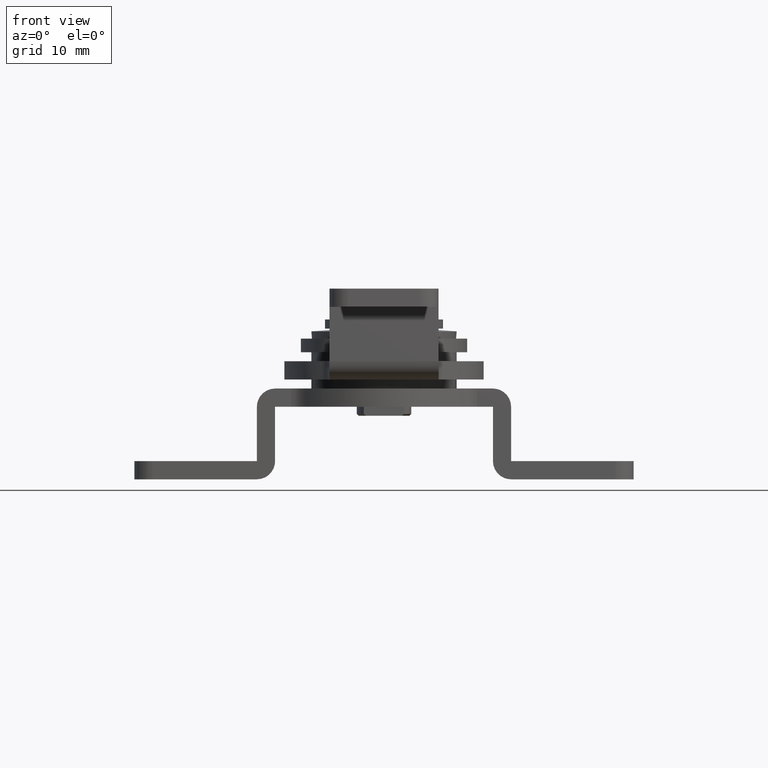
[diagram: clean part render]
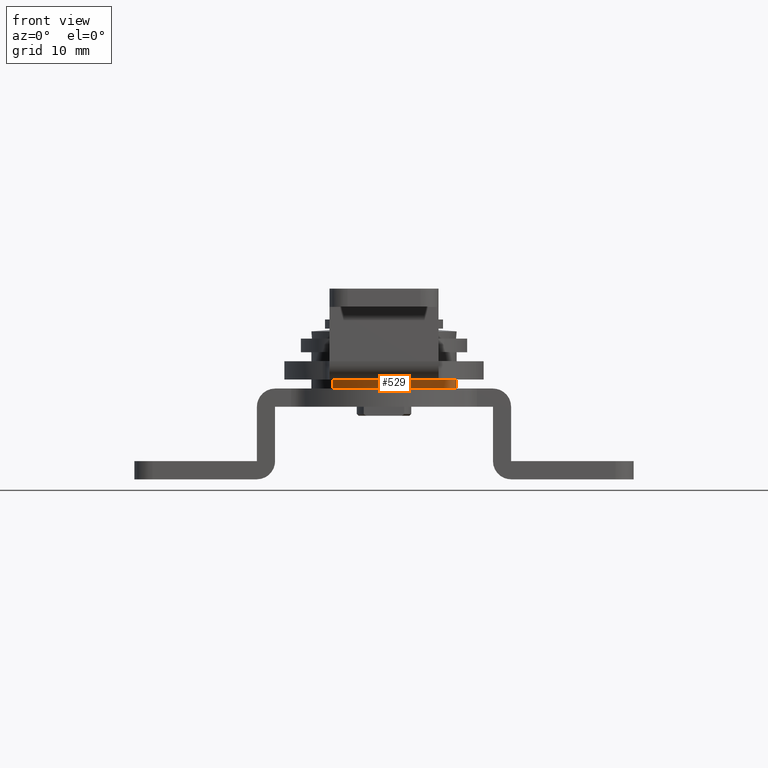
[diagram: same view with one face highlighted and labeled with its STEP entity id]
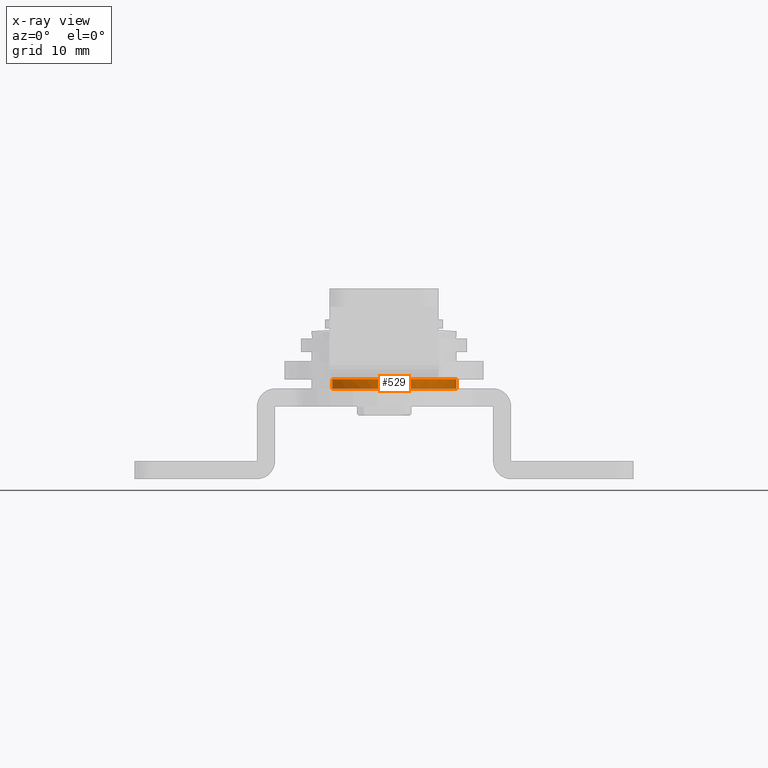
[diagram: x-ray of the same camera — body ghosted, the highlighted face saturated]
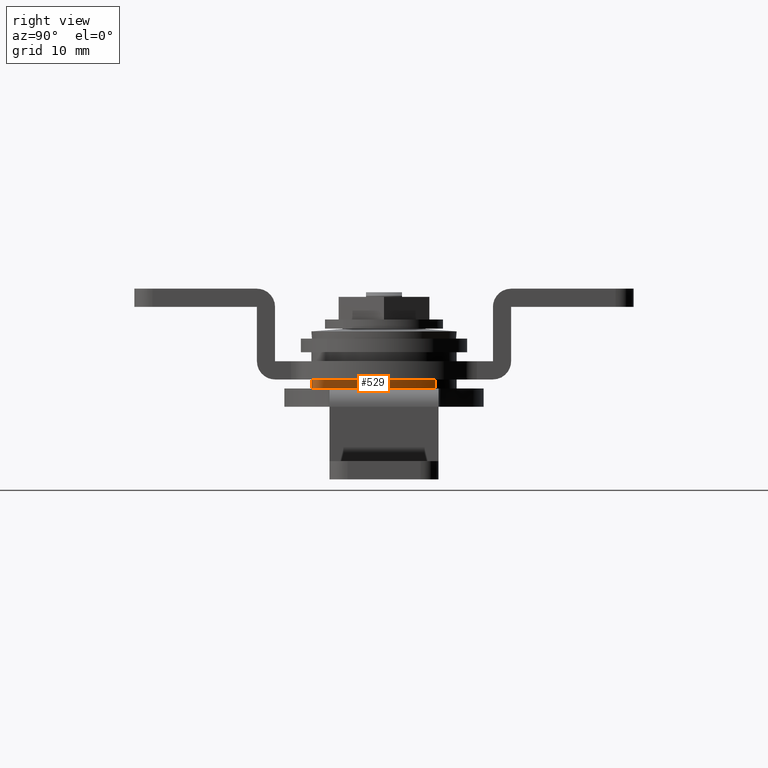
[diagram: same view with one face highlighted and labeled with its STEP entity id]
A machine part, front view. The second image highlights one B-rep face of the part: STEP entity #529.
The next image is the same camera in x-ray: the body ghosted, the highlighted face saturated — about 0% of this face is hidden behind the body in this view.
A second angle (right view) of the same face is appended — the face is thin or edge-on in the first view.
In plain terms, the highlighted face is a freeform B-spline surface patch.
Its self-contained STEP definition (entity closure, byte-faithful):
#286=CARTESIAN_POINT('',(0.000000690382217,-7.999999999999660,9.999999999999998));
#287=VERTEX_POINT('',#286);
#288=CARTESIAN_POINT('',(7.999999999999714,0.0,10.0));
#289=VERTEX_POINT('',#288);
#290=CARTESIAN_POINT('',(0.000000690382217,-7.999999999999660,9.999999999999998));
#291=CARTESIAN_POINT('',(0.490877506618089,-8.000052170862892,10.000000000000050));
#292=CARTESIAN_POINT('',(1.407155176493679,-7.915397810347240,9.999999999999957));
#293=CARTESIAN_POINT('',(2.659035239451721,-7.577211861814034,10.000000000000030));
#294=CARTESIAN_POINT('',(3.770247845835505,-7.088719302626079,9.999999999999947));
#295=CARTESIAN_POINT('',(4.742651503579835,-6.477115534708104,10.000000000000091));
#296=CARTESIAN_POINT('',(5.591522854418961,-5.753893154518888,9.999999999999879));
#297=CARTESIAN_POINT('',(6.381658405210720,-4.876755396399803,10.000000000000030));
#298=CARTESIAN_POINT('',(7.056707840685560,-3.846103088256579,9.999999999999986));
#299=CARTESIAN_POINT('',(7.518957145344865,-2.794461495427735,10.000000000000011));
#300=CARTESIAN_POINT('',(7.891723375823358,-1.538006291764996,9.999999999999996));
#301=CARTESIAN_POINT('',(8.000168774291760,-0.638153303648414,10.000000000000020));
#302=CARTESIAN_POINT('',(7.999999999999714,0.0,10.0));
#303=B_SPLINE_CURVE_WITH_KNOTS('',3,(#290,#291,#292,#293,#294,#295,#296,#297,#298,#299,#300,#301,#302),.UNSPECIFIED.,.F.,.U.,(4,1,1,1,1,1,1,1,1,1,4),(0.000000034117047,1.472621217284910,2.748895246628305,3.877915061374456,5.105099607727375,6.185032544892030,7.215856329581324,8.639387209473838,9.866582851109923,10.651987715039301,12.566389938236480),.UNSPECIFIED.);
#304=EDGE_CURVE('',#287,#289,#303,.T.);
#306=CARTESIAN_POINT('',(-5.706003484464519,-5.607273978874698,9.999999999997471));
#307=VERTEX_POINT('',#306);
#308=CARTESIAN_POINT('',(-5.706003484464519,-5.607273978874698,9.999999999997471));
#309=CARTESIAN_POINT('',(-5.404527771517090,-5.914102267910721,9.999999999997593));
#310=CARTESIAN_POINT('',(-4.839754935675491,-6.402889559918584,9.999999999997922));
#311=CARTESIAN_POINT('',(-3.893331713830410,-7.014717178565480,9.999999999998245));
#312=CARTESIAN_POINT('',(-3.009448196292946,-7.434716582077452,9.999999999998607));
#313=CARTESIAN_POINT('',(-2.034258866975570,-7.757354350632784,9.999999999999185));
#314=CARTESIAN_POINT('',(-1.058831181359865,-7.953591023553728,9.999999999999552));
#315=CARTESIAN_POINT('',(-0.347428564942405,-8.000010728444373,9.999999999999780));
#316=CARTESIAN_POINT('',(0.000000690382217,-7.999999999999660,9.999999999999998));
#317=B_SPLINE_CURVE_WITH_KNOTS('',3,(#308,#309,#310,#311,#312,#313,#314,#315,#316),.UNSPECIFIED.,.F.,.U.,(4,1,1,1,1,1,4),(8.993831E-009,1.290454463697691,2.233480979692844,3.375027528920178,4.218793196572205,5.310720772807520,6.353009308252656),.UNSPECIFIED.);
#318=EDGE_CURVE('',#307,#287,#317,.T.);
#351=CARTESIAN_POINT('',(5.706003484464580,5.607273978874709,9.999999999997471));
#352=VERTEX_POINT('',#351);
#364=CARTESIAN_POINT('',(7.999999999999714,0.0,10.0));
#365=CARTESIAN_POINT('',(8.000051008133374,0.485424137409317,9.999999999999758));
#366=CARTESIAN_POINT('',(7.932036838742406,1.229714165387648,9.999999999999480));
#367=CARTESIAN_POINT('',(7.687670753369284,2.270595961638213,9.999999999998945));
#368=CARTESIAN_POINT('',(7.314942416484245,3.325198433211744,9.999999999998506));
#369=CARTESIAN_POINT('',(6.674952557376522,4.495044086532087,9.999999999997938));
#370=CARTESIAN_POINT('',(6.034918637631532,5.272611271429168,9.999999999997872));
#371=CARTESIAN_POINT('',(5.706003484464580,5.607273978874709,9.999999999997471));
#372=B_SPLINE_CURVE_WITH_KNOTS('',3,(#364,#365,#366,#367,#368,#369,#370,#371),.UNSPECIFIED.,.F.,.U.,(4,1,1,1,1,4),(8.570671E-009,1.456260940194686,2.232936413454533,3.203770145824393,4.805663180401200,6.213381581241936),.UNSPECIFIED.);
#373=EDGE_CURVE('',#289,#352,#372,.T.);
#403=CARTESIAN_POINT('',(-5.706003729512275,-5.607274221927678,10.999999999961920));
#404=VERTEX_POINT('',#403);
#405=CARTESIAN_POINT('',(-5.706003729512275,-5.607274221927678,10.999999999961920));
#406=CARTESIAN_POINT('',(-5.706003484464519,-5.607273978874698,9.999999999997471));
#407=QUASI_UNIFORM_CURVE('',1,(#405,#406),.UNSPECIFIED.,.F.,.U.);
#408=EDGE_CURVE('',#404,#307,#407,.T.);
#441=CARTESIAN_POINT('',(5.706003729512335,5.607274221927689,10.999999999961920));
#442=VERTEX_POINT('',#441);
#454=CARTESIAN_POINT('',(5.706003729512335,5.607274221927689,10.999999999961920));
#455=CARTESIAN_POINT('',(5.706003484464580,5.607273978874709,9.999999999997471));
#456=QUASI_UNIFORM_CURVE('',1,(#454,#455),.UNSPECIFIED.,.F.,.U.);
#457=EDGE_CURVE('',#442,#352,#456,.T.);
#464=CARTESIAN_POINT('',(5.706003593233255,5.607274114398588,11.024999999960970));
#465=CARTESIAN_POINT('',(11.313277707631842,-0.098729478834642,11.024999999960970));
#466=CARTESIAN_POINT('',(5.607274114398613,-5.706003593233230,11.024999999960970));
#467=CARTESIAN_POINT('',(-0.098729478834617,-11.313277707631817,11.024999999960970));
#468=CARTESIAN_POINT('',(-5.706003593233205,-5.607274114398588,11.024999999960970));
#469=CARTESIAN_POINT('',(5.706003593233255,5.607274114398588,9.974375000000974));
#470=CARTESIAN_POINT('',(11.313277707631842,-0.098729478834642,9.974375000000974));
#471=CARTESIAN_POINT('',(5.607274114398613,-5.706003593233230,9.974375000000974));
#472=CARTESIAN_POINT('',(-0.098729478834617,-11.313277707631817,9.974375000000974));
#473=CARTESIAN_POINT('',(-5.706003593233205,-5.607274114398588,9.974375000000974));
#481=(BOUNDED_SURFACE()B_SPLINE_SURFACE(2,1,((#464,#469),(#465,#470),(#466,#471),(#467,#472),(#468,#473)),.UNSPECIFIED.,.F.,.F.,.U.)B_SPLINE_SURFACE_WITH_KNOTS((3,2,3),(2,2),(0.0,13.254833995938521,26.509667991877048),(0.0,1.0),.UNSPECIFIED.)GEOMETRIC_REPRESENTATION_ITEM()RATIONAL_B_SPLINE_SURFACE(((1.0,1.0),(0.707106781186548,0.707106781186548),(1.0,1.0),(0.707106781186548,0.707106781186548),(1.0,1.0)))REPRESENTATION_ITEM('')SURFACE());
#482=ORIENTED_EDGE('',*,*,#318,.T.);
#483=ORIENTED_EDGE('',*,*,#304,.T.);
#484=ORIENTED_EDGE('',*,*,#373,.T.);
#485=ORIENTED_EDGE('',*,*,#457,.F.);
#486=CARTESIAN_POINT('',(7.999999999999714,0.0,10.999999999961920));
#487=VERTEX_POINT('',#486);
#488=CARTESIAN_POINT('',(5.706003729512335,5.607274221927689,10.999999999961920));
#489=CARTESIAN_POINT('',(6.103007529520221,5.203394716639998,10.999999999961929));
#490=CARTESIAN_POINT('',(6.659001144187275,4.502105068983763,10.999999999961920));
#491=CARTESIAN_POINT('',(7.230047078478767,3.465634754143213,10.999999999961929));
#492=CARTESIAN_POINT('',(7.647351482181563,2.445776057153621,10.999999999961929));
#493=CARTESIAN_POINT('',(7.932379811778950,1.294453964757989,10.999999999961840));
#494=CARTESIAN_POINT('',(8.000018951452772,0.404516183609458,10.999999999962030));
#495=CARTESIAN_POINT('',(7.999999999999714,0.0,10.999999999961920));
#496=B_SPLINE_CURVE_WITH_KNOTS('',3,(#488,#489,#490,#491,#492,#493,#494,#495),.UNSPECIFIED.,.F.,.U.,(4,1,1,1,1,4),(8.569191E-009,1.698972431151017,2.669814871045790,3.543566854404229,4.999831245982241,6.213381716873188),.UNSPECIFIED.);
#497=EDGE_CURVE('',#442,#487,#496,.T.);
#498=ORIENTED_EDGE('',*,*,#497,.T.);
#499=CARTESIAN_POINT('',(-0.000000690382110,-7.999999999999661,10.999999999961920));
#500=VERTEX_POINT('',#499);
#501=CARTESIAN_POINT('',(7.999999999999714,0.0,10.999999999961920));
#502=CARTESIAN_POINT('',(8.000053589583096,-0.523600660657479,10.999999999961970));
#503=CARTESIAN_POINT('',(7.893638364283315,-1.603506244481130,10.999999999961890));
#504=CARTESIAN_POINT('',(7.411329197486245,-3.159177004843406,10.999999999961920));
#505=CARTESIAN_POINT('',(6.613884730979886,-4.597562174247137,10.999999999961929));
#506=CARTESIAN_POINT('',(5.650483078687058,-5.721316649678087,10.999999999961901));
#507=CARTESIAN_POINT('',(4.749969509681696,-6.460257419497983,10.999999999962050));
#508=CARTESIAN_POINT('',(3.895444012728525,-7.008757465193330,10.999999999961711));
#509=CARTESIAN_POINT('',(2.833867902065095,-7.526977605916599,10.999999999961959));
#510=CARTESIAN_POINT('',(1.472625493059820,-7.912675875691753,10.999999999961920));
#511=CARTESIAN_POINT('',(0.458144440900018,-8.000025909681744,10.999999999961929));
#512=CARTESIAN_POINT('',(-0.000000690382110,-7.999999999999661,10.999999999961920));
#513=B_SPLINE_CURVE_WITH_KNOTS('',3,(#501,#502,#503,#504,#505,#506,#507,#508,#509,#510,#511,#512),.UNSPECIFIED.,.F.,.U.,(4,1,1,1,1,1,1,1,1,4),(0.000000034070318,1.570796165471657,3.239773432023217,4.859661209257255,6.479526829985167,7.657637713549904,8.344866032197349,9.522968620684503,11.191948385936421,12.566390716459280),.UNSPECIFIED.);
#514=EDGE_CURVE('',#487,#500,#513,.T.);
#515=ORIENTED_EDGE('',*,*,#514,.T.);
#516=CARTESIAN_POINT('',(-0.000000690382110,-7.999999999999661,10.999999999961920));
#517=CARTESIAN_POINT('',(-0.711423502371475,-8.000230830104652,10.999999999961959));
#518=CARTESIAN_POINT('',(-1.968678007243026,-7.831150475194779,10.999999999961871));
#519=CARTESIAN_POINT('',(-3.550757247804829,-7.219014572184211,10.999999999962000));
#520=CARTESIAN_POINT('',(-4.751912878247440,-6.478938021649513,10.999999999961950));
#521=CARTESIAN_POINT('',(-5.404526531448117,-5.914100366170336,10.999999999961609));
#522=CARTESIAN_POINT('',(-5.706003729512275,-5.607274221927678,10.999999999961920));
#523=B_SPLINE_CURVE_WITH_KNOTS('',3,(#516,#517,#518,#519,#520,#521,#522),.UNSPECIFIED.,.F.,.U.,(4,1,1,1,4),(8.991309E-009,2.134216368154967,3.772097416012606,5.062553630295477,6.353008062922034),.UNSPECIFIED.);
#524=EDGE_CURVE('',#500,#404,#523,.T.);
#525=ORIENTED_EDGE('',*,*,#524,.T.);
#526=ORIENTED_EDGE('',*,*,#408,.T.);
#527=EDGE_LOOP('',(#482,#483,#484,#485,#498,#515,#525,#526));
#528=FACE_OUTER_BOUND('',#527,.T.);
#529=ADVANCED_FACE('',(#528),#481,.T.);